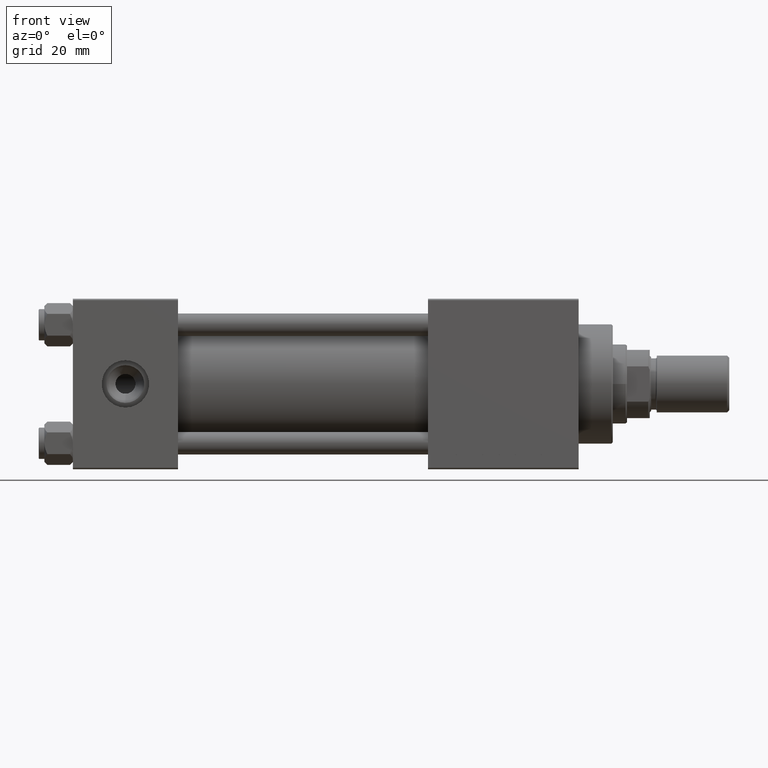
[diagram: clean part render]
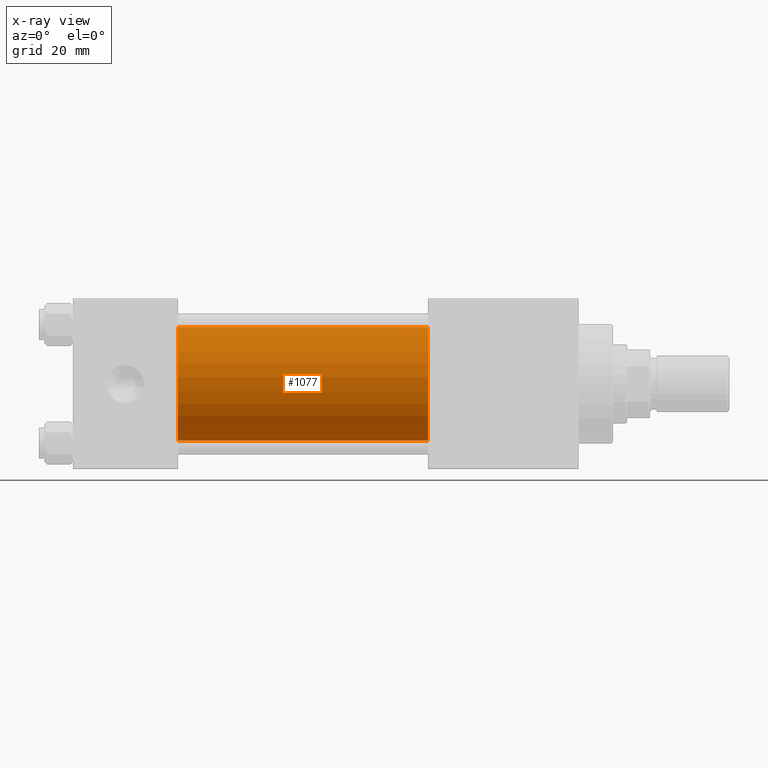
[diagram: x-ray — body ghosted, one internal face saturated and labeled with its STEP entity id]
A machine part, front view, then the same camera in x-ray: the body is ghosted and one INTERNAL B-rep face — a face not visible from any outside direction — is saturated and labeled: STEP entity #1077.
In plain terms, the highlighted cylindrical surface (partial cylindrical patch) has radius 20 mm, axis along (-1, -0, -0).
Its self-contained STEP definition (entity closure, byte-faithful):
#1077 = ADVANCED_FACE ( 'NONE', ( #49051 ), #18306, .F. ) ;
#1315 = VERTEX_POINT ( 'NONE', #12045 ) ;
#1878 = CARTESIAN_POINT ( 'NONE',  ( 37.00000000000000000, -2.602085213965210642E-15, 0.000000000000000000 ) ) ;
#2133 = EDGE_LOOP ( 'NONE', ( #45579, #36900, #10803, #34992 ) ) ;
#4774 = VECTOR ( 'NONE', #29194, 1000.000000000000000 ) ;
#6009 = DIRECTION ( 'NONE',  ( -1.000000000000000000, -0.000000000000000000, -0.000000000000000000 ) ) ;
#7417 = DIRECTION ( 'NONE',  ( 1.000000000000000000, 0.000000000000000000, 0.000000000000000000 ) ) ;
#8177 = DIRECTION ( 'NONE',  ( 0.000000000000000000, 0.000000000000000000, -1.000000000000000000 ) ) ;
#10803 = ORIENTED_EDGE ( 'NONE', *, *, #16119, .F. ) ;
#11766 = CARTESIAN_POINT ( 'NONE',  ( 125.0000000000000000, -2.602085213965210642E-15, 0.000000000000000000 ) ) ;
#11972 = EDGE_CURVE ( 'NONE', #1315, #17073, #21013, .T. ) ;
#12045 = CARTESIAN_POINT ( 'NONE',  ( 125.0000000000000000, -1.527916156705042519E-16, -20.00000000000000000 ) ) ;
#13599 = VERTEX_POINT ( 'NONE', #44194 ) ;
#15028 = VERTEX_POINT ( 'NONE', #36133 ) ;
#15247 = EDGE_CURVE ( 'NONE', #13599, #1315, #28605, .T. ) ;
#16119 = EDGE_CURVE ( 'NONE', #15028, #17073, #40943, .T. ) ;
#17073 = VERTEX_POINT ( 'NONE', #42836 ) ;
#17430 = CARTESIAN_POINT ( 'NONE',  ( 125.0000000000000000, -1.527916156705042519E-16, -20.00000000000000000 ) ) ;
#18306 = CYLINDRICAL_SURFACE ( 'NONE', #28903, 20.00000000000000000 ) ;
#21013 = LINE ( 'NONE', #17430, #4774 ) ;
#21094 = DIRECTION ( 'NONE',  ( 0.000000000000000000, 0.000000000000000000, -1.000000000000000000 ) ) ;
#27168 = EDGE_CURVE ( 'NONE', #13599, #15028, #30631, .T. ) ;
#27298 = CARTESIAN_POINT ( 'NONE',  ( 125.0000000000000000, -2.602085213965210642E-15, 20.00000000000000000 ) ) ;
#28605 = CIRCLE ( 'NONE', #42508, 20.00000000000000000 ) ;
#28903 = AXIS2_PLACEMENT_3D ( 'NONE', #29575, #6009, #41614 ) ;
#29194 = DIRECTION ( 'NONE',  ( -1.000000000000000000, -0.000000000000000000, -0.000000000000000000 ) ) ;
#29575 = CARTESIAN_POINT ( 'NONE',  ( 125.0000000000000000, -2.602085213965210642E-15, 0.000000000000000000 ) ) ;
#30631 = LINE ( 'NONE', #27298, #41191 ) ;
#34992 = ORIENTED_EDGE ( 'NONE', *, *, #27168, .F. ) ;
#36133 = CARTESIAN_POINT ( 'NONE',  ( 37.00000000000000000, -2.602085213965210642E-15, 20.00000000000000000 ) ) ;
#36900 = ORIENTED_EDGE ( 'NONE', *, *, #11972, .T. ) ;
#39290 = AXIS2_PLACEMENT_3D ( 'NONE', #1878, #45410, #21094 ) ;
#40943 = CIRCLE ( 'NONE', #39290, 20.00000000000000000 ) ;
#41191 = VECTOR ( 'NONE', #46251, 1000.000000000000000 ) ;
#41614 = DIRECTION ( 'NONE',  ( 0.000000000000000000, 0.000000000000000000, 1.000000000000000000 ) ) ;
#42508 = AXIS2_PLACEMENT_3D ( 'NONE', #11766, #7417, #8177 ) ;
#42836 = CARTESIAN_POINT ( 'NONE',  ( 37.00000000000000000, -1.527916156705042519E-16, -20.00000000000000000 ) ) ;
#44194 = CARTESIAN_POINT ( 'NONE',  ( 125.0000000000000000, -2.602085213965210642E-15, 20.00000000000000000 ) ) ;
#45410 = DIRECTION ( 'NONE',  ( 1.000000000000000000, 0.000000000000000000, 0.000000000000000000 ) ) ;
#45579 = ORIENTED_EDGE ( 'NONE', *, *, #15247, .T. ) ;
#46251 = DIRECTION ( 'NONE',  ( -1.000000000000000000, -0.000000000000000000, -0.000000000000000000 ) ) ;
#49051 = FACE_OUTER_BOUND ( 'NONE', #2133, .T. ) ;